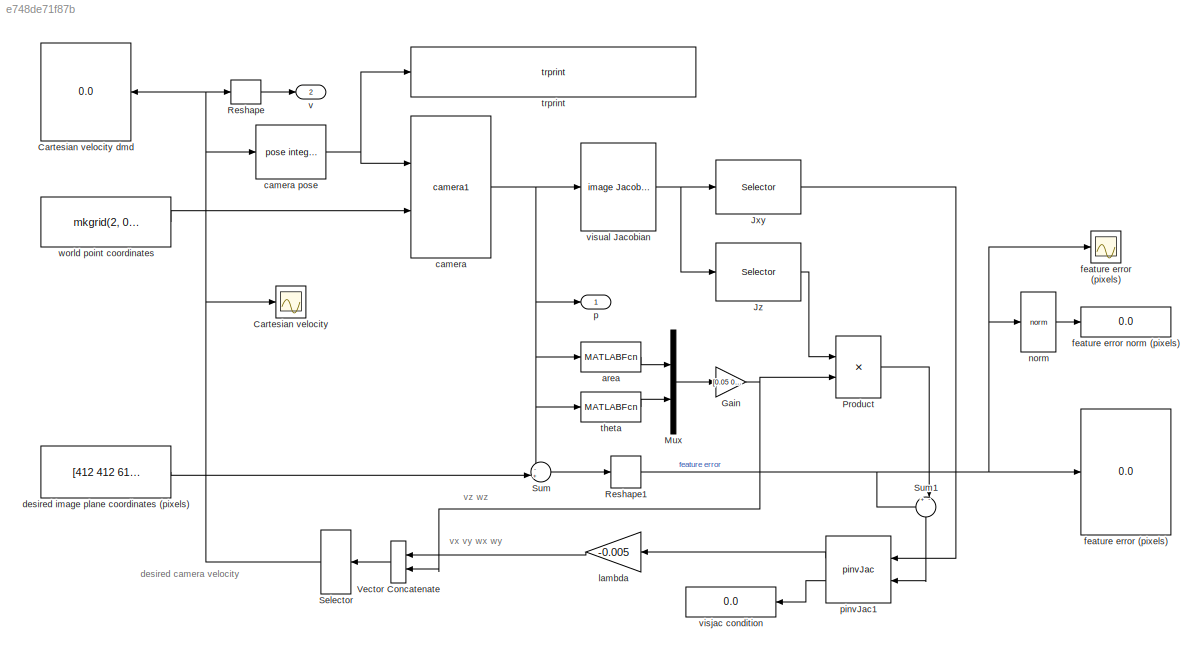
MODEL slx_e748de71f87b
KIND model
CONFIG AbsTol = auto
CONFIG FixedStep = auto
CONFIG InitFcn = cam = CentralCamera('default')
CONFIG MaxStep = auto
CONFIG MinStep = auto
CONFIG RelTol = 1e-3
CONFIG SampleTimeConstraint = Unconstrained
CONFIG Solver = ode45
CONFIG SolverMode = Auto
CONFIG SolverName = ode45
CONFIG StartTime = 0.0
CONFIG StopTime = 160
BLOCK [Scope] Cartesian velocity
  Ports = [1]
  ScopeSpecificationString = Simulink.scopes.TimeScopeBlockCfg('CurrentConfiguration', extmgr.ConfigurationSet(extmgr.Configuration('Core','General UI',true),extmgr.Configuration('Core','Source UI',true),extmgr.Configuration('Sources','WiredSimulink',true,'DataLoggingVariableName','ScopeData1','DataLoggingLimitDataPoints',true,'DataLoggingSaveFormat','Array','DataLoggingDecimation','1','DataLoggingDecimateData',true),extmgr.C...<+1614ch>
BLOCK [Display] Cartesian velocity dmd
  Decimation = 1
  Format = bank
  Ports = [1]
BLOCK [Gain] Gain
  Gain = [0.05 0.05]
  OutDataTypeStr = Inherit: Inherit via internal rule
  ParamDataTypeStr = Inherit: Inherit via internal rule
  SaturateOnIntegerOverflow = off
BLOCK [Selector] Jxy
  IndexOptions = Select all,Index vector (dialog)
  Indices = [1 3],[1 2 4 5]
  InputPortWidth = 3
  NumberOfDimensions = 2
  OutputSizes = 1,1
  Ports = [1, 1]
BLOCK [Selector] Jz
  IndexOptions = Select all,Index vector (dialog)
  Indices = [1 3],[3 6]
  InputPortWidth = 3
  NumberOfDimensions = 2
  OutputSizes = 1,1
  Ports = [1, 1]
BLOCK [Mux] Mux
  DisplayOption = bar
  Inputs = 2
  Ports = [2, 1]
BLOCK [Product] Product
  InputSameDT = off
  Multiplication = Matrix(*)
  OutDataTypeStr = Inherit: Inherit via internal rule
  Ports = [2, 1]
  SaturateOnIntegerOverflow = off
BLOCK [Reshape] Reshape
  OutputDimensions = 6
  Ports = [1, 1]
BLOCK [Reshape] Reshape1
  OutputDimensions = 6
  Ports = [1, 1]
BLOCK [Selector] Selector
  IndexOptions = Index vector (dialog)
  Indices = [1 2 5 3 4 6]
  InputPortWidth = 6
  OutputSizes = 1
  Ports = [1, 1]
BLOCK [Sum] Sum
  IconShape = round
  Inputs = -+|
  Ports = [2, 1]
BLOCK [Sum] Sum1
  IconShape = round
  InputSameDT = off
  Inputs = +-|
  OutDataTypeStr = Inherit: Inherit via internal rule
  Ports = [2, 1]
  SaturateOnIntegerOverflow = off
BLOCK [Concatenate] Vector Concatenate
  ConcatenateDimension = 2
  Ports = [2, 1]
BLOCK [MATLABFcn] area
  MATLABFcn = 1-sqrt( abs(mpq_poly(u, 0,0)) )/200
  Ports = [1, 1]
BLOCK [Reference] camera  REF=roblocks/Vision/camera1  (lib defined in mdl_2a292b13c81b, mdl_69400f8cfe22, +12 more)
  Ports = [2, 1]
  SourceBlock = roblocks/Vision/camera1
BLOCK [Reference] camera pose  REF=roblocks/Toolbox/pose integral  (lib defined in mdl_2a292b13c81b, mdl_69400f8cfe22, +12 more)
  Ports = [1, 1]
  SourceBlock = roblocks/Toolbox/pose integral
BLOCK [Constant] desired image plane coordinates (pixels)
  Value = [412 412 612 612; 412 612 612 412]
  VectorParams1D = off
BLOCK [Display] feature error (pixels)
  Decimation = 1
  Format = bank
  Ports = [1]
BLOCK [Scope] feature error (pixels) 
  Ports = [1]
  ScopeSpecificationString = Simulink.scopes.TimeScopeBlockCfg('CurrentConfiguration', extmgr.ConfigurationSet(extmgr.Configuration('Core','General UI',true),extmgr.Configuration('Core','Source UI',true),extmgr.Configuration('Sources','WiredSimulink',true,'DataLoggingLimitDataPoints',true,'DataLoggingSaveFormat','Array','DataLoggingDecimation','1','DataLoggingDecimateData',true),extmgr.Configuration('Visuals','Time Domain',tr...<+1654ch>
BLOCK [Display] feature error norm (pixels)
  Decimation = 1
  Ports = [1]
BLOCK [Gain] lambda
  Gain = -0.005
BLOCK [Reference] norm  REF=roblocks/Toolbox/norm  (lib defined in mdl_2a292b13c81b, mdl_69400f8cfe22, +12 more)
  Ports = [1, 1]
  SourceBlock = roblocks/Toolbox/norm
BLOCK [Outport] p
  IconDisplay = Port number
BLOCK [Reference] pinvJac1  REF=roblocks/Toolbox/pinvJac  (lib defined in mdl_2a292b13c81b, mdl_69400f8cfe22, +12 more)
  Ports = [2, 2]
  SourceBlock = roblocks/Toolbox/pinvJac
BLOCK [MATLABFcn] theta
  MATLABFcn = angdiff( atan2(u(2,3)-u(2,2),u(1,3)-u(1,2)), 0 )
  Ports = [1, 1]
BLOCK [Reference] trprint  REF=roblocks/Toolbox/trprint  (lib defined in mdl_2a292b13c81b, mdl_69400f8cfe22, +12 more)
  Ports = [1]
  SourceBlock = roblocks/Toolbox/trprint
BLOCK [Outport] v
  IconDisplay = Port number
  Port = 2
BLOCK [Display] visjac condition
  Decimation = 1
  Ports = [1]
BLOCK [Reference] visual Jacobian  REF=roblocks/Vision/image  (lib defined in mdl_2a292b13c81b, mdl_69400f8cfe22, +12 more)
Jacobian
  Ports = [1, 1]
  SourceBlock = roblocks/Vision/image\nJacobian
BLOCK [Constant] world point coordinates
  Value = mkgrid(2, 0.5, transl(0,0,3))
  VectorParams1D = off
ANNOTATION (root): desired camera velocity
ANNOTATION (root): vx vy wx wy
ANNOTATION (root): vz wz
NET Gain:1 -> Product:2, Vector Concatenate:2
LINE Jxy:1 -> pinvJac1:1
LINE Jz:1 -> Product:1
LINE Mux:1 -> Gain:1
LINE Product:1 -> Sum1:2
NET Reshape1:1 -> Sum1:1, feature error (pixels) :1, feature error (pixels):1, norm:1
LINE Reshape:1 -> v:1
NET Selector:1 -> Cartesian velocity dmd:1, Cartesian velocity:1, Reshape:1, camera pose:1
LINE Sum1:1 -> pinvJac1:2
LINE Sum:1 -> Reshape1:1
LINE Vector Concatenate:1 -> Selector:1
LINE area:1 -> Mux:1
NET camera pose:1 -> camera:1, trprint:1
NET camera:1 -> Sum:1, area:1, p:1, theta:1, visual Jacobian:1
LINE desired image plane coordinates (pixels):1 -> Sum:2
LINE lambda:1 -> Vector Concatenate:1
LINE norm:1 -> feature error norm (pixels):1
LINE pinvJac1:1 -> lambda:1
LINE pinvJac1:2 -> visjac condition:1
LINE theta:1 -> Mux:2
NET visual Jacobian:1 -> Jxy:1, Jz:1
LINE world point coordinates:1 -> camera:2
note: NET lines group one-source signal fan-out (src -> all destinations, sorted); 1:1 wires keep LINE
